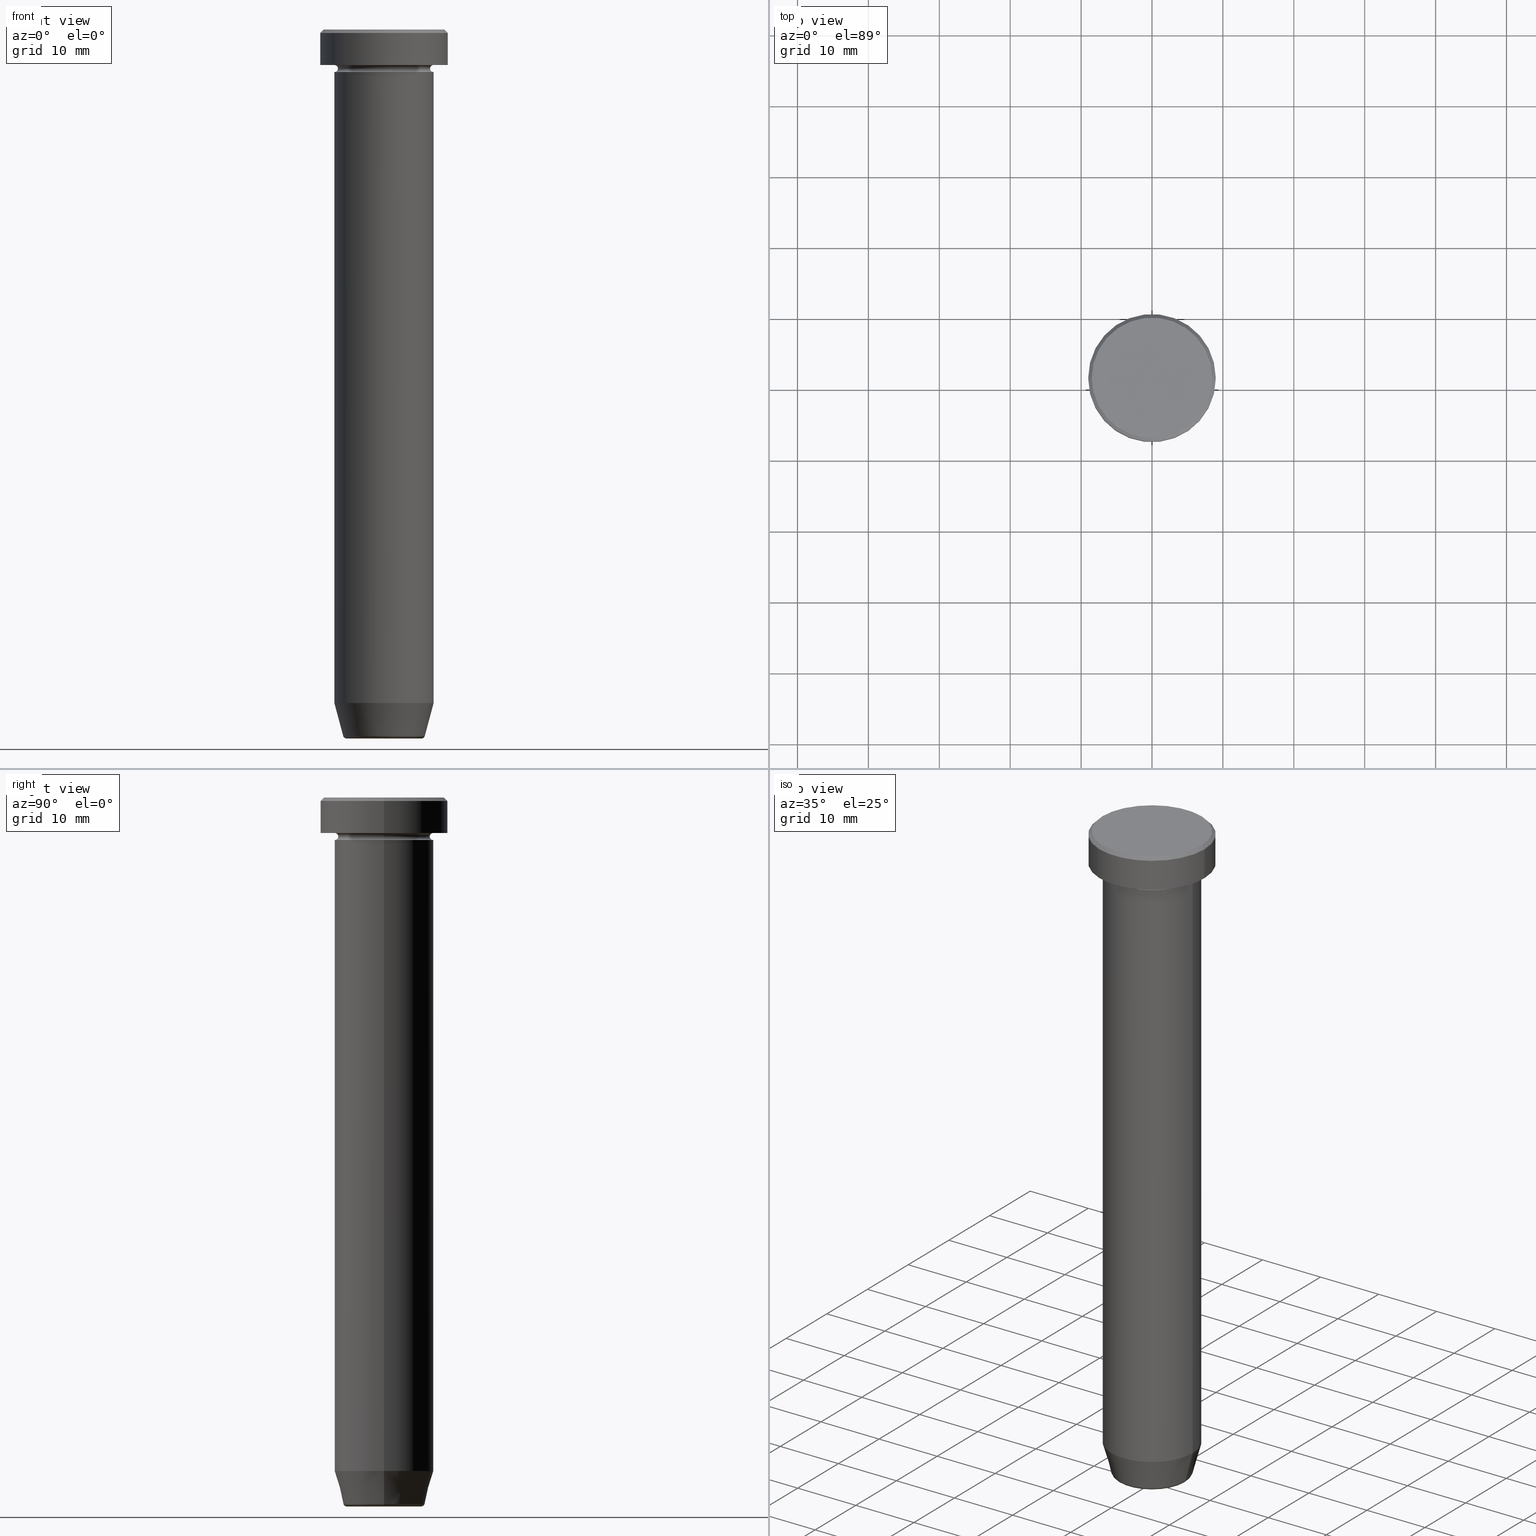
[diagram: canonical four-view strip — front | top / right | iso, engineering-drawing reading convention]
A machine part, canonical four-view strip (front | top / right | iso — engineering-drawing reading convention). The complete STEP part file that produces these views, byte-faithful:
ISO-10303-21;
HEADER;
FILE_DESCRIPTION (( 'STEP AP203' ),
    '1' );
FILE_NAME ('487d.STEP',
    '2024-01-02T23:12:55',
    ( '' ),
    ( '' ),
    'SwSTEP 2.0',
    'SolidWorks 2019',
    '' );
FILE_SCHEMA (( 'CONFIG_CONTROL_DESIGN' ));
ENDSEC;

DATA;
#1 = DIRECTION ( 'NONE',  ( -0.000000000000000000, -0.000000000000000000, 1.000000000000000000 ) ) ;
#2 = CARTESIAN_POINT ( 'NONE',  ( 0.000000000000000000, 0.000000000000000000, 0.000000000000000000 ) ) ;
#3 = DIRECTION ( 'NONE',  ( -0.000000000000000000, -0.000000000000000000, 1.000000000000000000 ) ) ;
#4 = LINE ( 'NONE', #368, #203 ) ;
#5 = EDGE_CURVE ( 'NONE', #177, #145, #255, .T. ) ;
#6 = DIRECTION ( 'NONE',  ( -0.000000000000000000, -0.000000000000000000, 1.000000000000000000 ) ) ;
#7 = CIRCLE ( 'NONE', #532, 7.000000000000000888 ) ;
#8 = DIRECTION ( 'NONE',  ( 0.000000000000000000, 0.000000000000000000, -1.000000000000000000 ) ) ;
#9 = EDGE_CURVE ( 'NONE', #237, #505, #37, .T. ) ;
#10 = DIRECTION ( 'NONE',  ( -1.224646799147353207E-16, 1.000000000000000000, 0.000000000000000000 ) ) ;
#11 = CARTESIAN_POINT ( 'NONE',  ( 0.000000000000000000, 0.000000000000000000, 0.000000000000000000 ) ) ;
#12 = APPROVAL_DATE_TIME ( #244, #369 ) ;
#13 = AXIS2_PLACEMENT_3D ( 'NONE', #59, #351, #120 ) ;
#14 = ORIENTED_EDGE ( 'NONE', *, *, #594, .F. ) ;
#15 = CIRCLE ( 'NONE', #232, 7.000000000000000000 ) ;
#16 = PLANE ( 'NONE',  #239 ) ;
#17 = CARTESIAN_POINT ( 'NONE',  ( 0.000000000000000000, 0.000000000000000000, 0.000000000000000000 ) ) ;
#18 = DIRECTION ( 'NONE',  ( -1.000000000000000000, 0.000000000000000000, 0.000000000000000000 ) ) ;
#19 = CARTESIAN_POINT ( 'NONE',  ( -6.500000000000000888, 8.266365894244635319E-16, -5.500000000000000000 ) ) ;
#20 = EDGE_CURVE ( 'NONE', #410, #566, #331, .T. ) ;
#21 = DIRECTION ( 'NONE',  ( 1.000000000000000000, 0.000000000000000000, 0.000000000000000000 ) ) ;
#22 = EDGE_LOOP ( 'NONE', ( #130, #322, #66, #143 ) ) ;
#23 = DIRECTION ( 'NONE',  ( -1.000000000000000000, 0.000000000000000000, 0.000000000000000000 ) ) ;
#24 = AXIS2_PLACEMENT_3D ( 'NONE', #464, #101, #273 ) ;
#25 = VERTEX_POINT ( 'NONE', #103 ) ;
#26 = CARTESIAN_POINT ( 'NONE',  ( 0.000000000000000000, 0.000000000000000000, -6.000000000000000000 ) ) ;
#27 = DIRECTION ( 'NONE',  ( -1.000000000000000000, 0.000000000000000000, 0.000000000000000000 ) ) ;
#28 = CARTESIAN_POINT ( 'NONE',  ( 0.000000000000000000, 0.000000000000000000, -99.50000000000000000 ) ) ;
#29 = EDGE_CURVE ( 'NONE', #280, #372, #197, .T. ) ;
#30 = ORIENTED_EDGE ( 'NONE', *, *, #420, .F. ) ;
#31 = VERTEX_POINT ( 'NONE', #186 ) ;
#32 = CARTESIAN_POINT ( 'NONE',  ( -5.276590543854903004, 6.757689212787765916E-16, -100.0000000000000000 ) ) ;
#33 = EDGE_LOOP ( 'NONE', ( #93, #36, #115, #428 ) ) ;
#34 = CIRCLE ( 'NONE', #375, 7.000000000000000000 ) ;
#35 = ORIENTED_EDGE ( 'NONE', *, *, #564, .T. ) ;
#36 = ORIENTED_EDGE ( 'NONE', *, *, #47, .T. ) ;
#37 = CIRCLE ( 'NONE', #385, 9.000000000000000000 ) ;
#38 = AXIS2_PLACEMENT_3D ( 'NONE', #290, #426, #8 ) ;
#39 = ORIENTED_EDGE ( 'NONE', *, *, #309, .F. ) ;
#40 = CC_DESIGN_DATE_AND_TIME_ASSIGNMENT ( #154, #63, ( #412 ) ) ;
#41 = DIRECTION ( 'NONE',  ( 0.000000000000000000, 0.000000000000000000, -1.000000000000000000 ) ) ;
#42 = EDGE_LOOP ( 'NONE', ( #261, #254, #227, #64 ) ) ;
#43 = FACE_OUTER_BOUND ( 'NONE', #22, .T. ) ;
#44 = AXIS2_PLACEMENT_3D ( 'NONE', #65, #396, #349 ) ;
#45 = LOCAL_TIME ( 0, 12, 55.00000000000000000, #198 ) ;
#46 = DIRECTION ( 'NONE',  ( 1.000000000000000000, 0.000000000000000000, 0.000000000000000000 ) ) ;
#47 = EDGE_CURVE ( 'NONE', #463, #505, #330, .T. ) ;
#48 = DIRECTION ( 'NONE',  ( -0.2588190451025210170, 3.169619151431768639E-17, 0.9659258262890680902 ) ) ;
#49 = DIRECTION ( 'NONE',  ( -1.000000000000000000, 0.000000000000000000, 0.000000000000000000 ) ) ;
#50 = DATE_AND_TIME ( #210, #247 ) ;
#51 = MANIFOLD_SOLID_BREP ( 'Zaoblit4', #371 ) ;
#52 = CIRCLE ( 'NONE', #151, 6.500000000000000888 ) ;
#53 = VECTOR ( 'NONE', #48, 1000.000000000000114 ) ;
#54 = EDGE_LOOP ( 'NONE', ( #498, #35 ) ) ;
#55 = ADVANCED_FACE ( 'NONE', ( #43 ), #90, .T. ) ;
#56 = LINE ( 'NONE', #398, #387 ) ;
#57 = PERSON_AND_ORGANIZATION_ROLE ( 'classification_officer' ) ;
#58 = CARTESIAN_POINT ( 'NONE',  ( -7.000000000000000888, 8.572527594031474176E-16, -5.500000000000000000 ) ) ;
#59 = CARTESIAN_POINT ( 'NONE',  ( 0.000000000000000000, 0.000000000000000000, -99.50000000000000000 ) ) ;
#60 = ORIENTED_EDGE ( 'NONE', *, *, #181, .F. ) ;
#61 = AXIS2_PLACEMENT_3D ( 'NONE', #300, #106, #108 ) ;
#62 = TOROIDAL_SURFACE ( 'NONE', #140, 7.000000000000000888, 0.5000000000000000000 ) ;
#63 = DATE_TIME_ROLE ( 'creation_date' ) ;
#64 = ORIENTED_EDGE ( 'NONE', *, *, #420, .T. ) ;
#65 = CARTESIAN_POINT ( 'NONE',  ( 0.000000000000000000, 0.000000000000000000, 0.000000000000000000 ) ) ;
#66 = ORIENTED_EDGE ( 'NONE', *, *, #496, .F. ) ;
#67 = PERSON ( 'NEUR�EN�', 'NEUR�EN�', 'NEUR�EN�', ('NEUR�EN�'), ('NEUR�EN�'), ('NEUR�EN�') ) ;
#68 = TOROIDAL_SURFACE ( 'NONE', #354, 7.000000000000000888, 0.5000000000000000000 ) ;
#69 = LOCAL_TIME ( 0, 12, 55.00000000000000000, #527 ) ;
#70 = CARTESIAN_POINT ( 'NONE',  ( 0.000000000000000000, 0.000000000000000000, -5.500000000000000000 ) ) ;
#71 = EDGE_LOOP ( 'NONE', ( #85, #220, #250, #592 ) ) ;
#72 = PERSON_AND_ORGANIZATION ( #67, #240 ) ;
#73 = DIRECTION ( 'NONE',  ( -0.000000000000000000, -0.000000000000000000, 1.000000000000000000 ) ) ;
#74 = EDGE_CURVE ( 'NONE', #410, #595, #298, .T. ) ;
#75 = ORIENTED_EDGE ( 'NONE', *, *, #181, .T. ) ;
#76 = CARTESIAN_POINT ( 'NONE',  ( 0.000000000000000000, 0.000000000000000000, -100.0000000000000000 ) ) ;
#77 = ORIENTED_EDGE ( 'NONE', *, *, #5, .F. ) ;
#78 = FACE_OUTER_BOUND ( 'NONE', #84, .T. ) ;
#79 = DIRECTION ( 'NONE',  ( -0.000000000000000000, -0.000000000000000000, 1.000000000000000000 ) ) ;
#80 = CIRCLE ( 'NONE', #44, 8.500000000000003553 ) ;
#81 = EDGE_LOOP ( 'NONE', ( #95, #252 ) ) ;
#82 = PLANE ( 'NONE',  #275 ) ;
#83 = APPLICATION_CONTEXT ( 'configuration controlled 3d designs of mechanical parts and assemblies' ) ;
#84 = EDGE_LOOP ( 'NONE', ( #455, #588, #373, #324 ) ) ;
#85 = ORIENTED_EDGE ( 'NONE', *, *, #564, .F. ) ;
#86 = FACE_OUTER_BOUND ( 'NONE', #226, .T. ) ;
#87 = DIRECTION ( 'NONE',  ( 1.000000000000000000, 0.000000000000000000, 0.000000000000000000 ) ) ;
#88 = DIRECTION ( 'NONE',  ( 0.2588190451025210170, 0.000000000000000000, 0.9659258262890680902 ) ) ;
#89 = ORIENTED_EDGE ( 'NONE', *, *, #365, .F. ) ;
#90 = CYLINDRICAL_SURFACE ( 'NONE', #454, 7.000000000000000000 ) ;
#91 = ORIENTED_EDGE ( 'NONE', *, *, #479, .T. ) ;
#92 = CARTESIAN_POINT ( 'NONE',  ( 5.759553456999434218, 0.000000000000000000, -99.62940952255127058 ) ) ;
#93 = ORIENTED_EDGE ( 'NONE', *, *, #577, .T. ) ;
#94 = CIRCLE ( 'NONE', #132, 5.759553456999434218 ) ;
#95 = ORIENTED_EDGE ( 'NONE', *, *, #496, .T. ) ;
#96 = ORIENTED_EDGE ( 'NONE', *, *, #205, .T. ) ;
#97 = TOROIDAL_SURFACE ( 'NONE', #524, 7.000000000000000888, 0.5000000000000000000 ) ;
#98 = AXIS2_PLACEMENT_3D ( 'NONE', #337, #41, #291 ) ;
#99 = ADVANCED_FACE ( 'NONE', ( #560 ), #62, .F. ) ;
#100 = CARTESIAN_POINT ( 'NONE',  ( 0.000000000000000000, 0.000000000000000000, -5.000000000000000000 ) ) ;
#101 = DIRECTION ( 'NONE',  ( -0.000000000000000000, -0.000000000000000000, 1.000000000000000000 ) ) ;
#102 = DIRECTION ( 'NONE',  ( 1.000000000000000000, 0.000000000000000000, 0.000000000000000000 ) ) ;
#103 = CARTESIAN_POINT ( 'NONE',  ( 7.000000000000000000, 0.000000000000000000, -25.00000000000000000 ) ) ;
#104 = CARTESIAN_POINT ( 'NONE',  ( 0.000000000000000000, 0.000000000000000000, -5.000000000000000000 ) ) ;
#105 = DIRECTION ( 'NONE',  ( 1.000000000000000000, 0.000000000000000000, 0.000000000000000000 ) ) ;
#106 = DIRECTION ( 'NONE',  ( 0.000000000000000000, 0.000000000000000000, -1.000000000000000000 ) ) ;
#107 = EDGE_CURVE ( 'NONE', #442, #295, #56, .T. ) ;
#108 = DIRECTION ( 'NONE',  ( 1.000000000000000000, 0.000000000000000000, 0.000000000000000000 ) ) ;
#109 = PERSON_AND_ORGANIZATION ( #67, #240 ) ;
#110 = ORIENTED_EDGE ( 'NONE', *, *, #397, .T. ) ;
#111 = AXIS2_PLACEMENT_3D ( 'NONE', #431, #10, #568 ) ;
#112 = DIRECTION ( 'NONE',  ( 1.224646799147353207E-16, 1.000000000000000000, 0.000000000000000000 ) ) ;
#113 = DIRECTION ( 'NONE',  ( -0.000000000000000000, -0.000000000000000000, 1.000000000000000000 ) ) ;
#114 = CARTESIAN_POINT ( 'NONE',  ( 0.000000000000000000, 0.000000000000000000, -5.000000000000000000 ) ) ;
#115 = ORIENTED_EDGE ( 'NONE', *, *, #188, .T. ) ;
#116 = DIRECTION ( 'NONE',  ( -0.000000000000000000, -0.000000000000000000, 1.000000000000000000 ) ) ;
#117 = PERSON_AND_ORGANIZATION_ROLE ( 'design_owner' ) ;
#118 = ADVANCED_FACE ( 'NONE', ( #360 ), #572, .F. ) ;
#119 = CIRCLE ( 'NONE', #260, 0.5000000000000004441 ) ;
#120 = DIRECTION ( 'NONE',  ( 1.000000000000000000, 0.000000000000000000, 0.000000000000000000 ) ) ;
#121 = CIRCLE ( 'NONE', #262, 9.000000000000000000 ) ;
#122 = DIRECTION ( 'NONE',  ( -0.000000000000000000, -0.000000000000000000, 1.000000000000000000 ) ) ;
#123 = DIRECTION ( 'NONE',  ( 1.000000000000000000, 0.000000000000000000, 0.000000000000000000 ) ) ;
#124 = CC_DESIGN_PERSON_AND_ORGANIZATION_ASSIGNMENT ( #109, #293, ( #335 ) ) ;
#125 = ORIENTED_EDGE ( 'NONE', *, *, #142, .F. ) ;
#126 = DIRECTION ( 'NONE',  ( -0.000000000000000000, -0.000000000000000000, 1.000000000000000000 ) ) ;
#127 = CARTESIAN_POINT ( 'NONE',  ( 0.000000000000000000, 0.000000000000000000, 0.000000000000000000 ) ) ;
#128 = CARTESIAN_POINT ( 'NONE',  ( 0.000000000000000000, -3.469446951953614189E-15, -25.00000000000000000 ) ) ;
#129 = ADVANCED_FACE ( 'NONE', ( #443 ), #166, .T. ) ;
#130 = ORIENTED_EDGE ( 'NONE', *, *, #309, .T. ) ;
#131 = CARTESIAN_POINT ( 'NONE',  ( 5.276590543854903004, 0.000000000000000000, -100.0000000000000000 ) ) ;
#132 = AXIS2_PLACEMENT_3D ( 'NONE', #449, #163, #23 ) ;
#133 = AXIS2_PLACEMENT_3D ( 'NONE', #301, #362, #348 ) ;
#134 = DIRECTION ( 'NONE',  ( 1.000000000000000000, 0.000000000000000000, 0.000000000000000000 ) ) ;
#135 = CONICAL_SURFACE ( 'NONE', #367, 5.660254037844383745, 0.2617993877991497409 ) ;
#136 = FACE_OUTER_BOUND ( 'NONE', #267, .T. ) ;
#137 = EDGE_LOOP ( 'NONE', ( #343, #452 ) ) ;
#138 = DIRECTION ( 'NONE',  ( 1.000000000000000000, 0.000000000000000000, 0.000000000000000000 ) ) ;
#139 = ORIENTED_EDGE ( 'NONE', *, *, #229, .T. ) ;
#140 = AXIS2_PLACEMENT_3D ( 'NONE', #207, #583, #394 ) ;
#141 = CARTESIAN_POINT ( 'NONE',  ( 0.000000000000000000, 0.000000000000000000, -5.500000000000000000 ) ) ;
#142 = EDGE_CURVE ( 'NONE', #145, #595, #7, .T. ) ;
#143 = ORIENTED_EDGE ( 'NONE', *, *, #397, .F. ) ;
#144 = CARTESIAN_POINT ( 'NONE',  ( 0.000000000000000000, 0.000000000000000000, -0.4999999999999987232 ) ) ;
#145 = VERTEX_POINT ( 'NONE', #389 ) ;
#146 = CONICAL_SURFACE ( 'NONE', #477, 8.500000000000003553, 0.7853981633974447263 ) ;
#147 = DIRECTION ( 'NONE',  ( 1.000000000000000000, 0.000000000000000000, 0.000000000000000000 ) ) ;
#148 = ADVANCED_FACE ( 'NONE', ( #304 ), #292, .T. ) ;
#149 = CARTESIAN_POINT ( 'NONE',  ( -5.660254037844383745, 6.931811989807006322E-16, -100.0000000000000000 ) ) ;
#150 = CIRCLE ( 'NONE', #223, 5.759553456999434218 ) ;
#151 = AXIS2_PLACEMENT_3D ( 'NONE', #187, #419, #102 ) ;
#152 = DIRECTION ( 'NONE',  ( -0.000000000000000000, -0.000000000000000000, 1.000000000000000000 ) ) ;
#153 = DIRECTION ( 'NONE',  ( 1.000000000000000000, 0.000000000000000000, 0.000000000000000000 ) ) ;
#154 = DATE_AND_TIME ( #350, #201 ) ;
#155 = APPROVAL_STATUS ( 'not_yet_approved' ) ;
#156 = AXIS2_PLACEMENT_3D ( 'NONE', #584, #268, #208 ) ;
#157 = FACE_OUTER_BOUND ( 'NONE', #526, .T. ) ;
#158 = APPLICATION_PROTOCOL_DEFINITION ( 'international standard', 'config_control_design', 1994, #83 ) ;
#159 = DIRECTION ( 'NONE',  ( 1.000000000000000000, 0.000000000000000000, 0.000000000000000000 ) ) ;
#160 = CARTESIAN_POINT ( 'NONE',  ( 7.000000000000000000, 0.000000000000000000, -95.00000000000000000 ) ) ;
#161 = ADVANCED_FACE ( 'NONE', ( #361 ), #556, .T. ) ;
#162 = MECHANICAL_CONTEXT ( 'NONE', #214, 'mechanical' ) ;
#163 = DIRECTION ( 'NONE',  ( -0.000000000000000000, -0.000000000000000000, 1.000000000000000000 ) ) ;
#164 = CC_DESIGN_PERSON_AND_ORGANIZATION_ASSIGNMENT ( #480, #57, ( #590 ) ) ;
#165 = COORDINATED_UNIVERSAL_TIME_OFFSET ( 1, 0, .AHEAD. ) ;
#166 = TOROIDAL_SURFACE ( 'NONE', #13, 5.276590543854903004, 0.5000000000000000000 ) ;
#167 = CC_DESIGN_APPROVAL ( #523, ( #412 ) ) ;
#168 = DIRECTION ( 'NONE',  ( 1.000000000000000000, 0.000000000000000000, 0.000000000000000000 ) ) ;
#169 = ADVANCED_FACE ( 'NONE', ( #580 ), #68, .F. ) ;
#170 = DIRECTION ( 'NONE',  ( 0.000000000000000000, 0.000000000000000000, -1.000000000000000000 ) ) ;
#171 = LINE ( 'NONE', #321, #510 ) ;
#172 = LINE ( 'NONE', #451, #381 ) ;
#173 = FACE_OUTER_BOUND ( 'NONE', #307, .T. ) ;
#174 = FACE_OUTER_BOUND ( 'NONE', #242, .T. ) ;
#175 = CIRCLE ( 'NONE', #516, 7.000000000000000000 ) ;
#176 = CIRCLE ( 'NONE', #327, 7.000000000000000000 ) ;
#177 = VERTEX_POINT ( 'NONE', #548 ) ;
#178 = ORIENTED_EDGE ( 'NONE', *, *, #414, .T. ) ;
#179 = DIRECTION ( 'NONE',  ( -0.000000000000000000, -0.000000000000000000, 1.000000000000000000 ) ) ;
#180 = ORIENTED_EDGE ( 'NONE', *, *, #213, .F. ) ;
#181 = EDGE_CURVE ( 'NONE', #578, #549, #222, .T. ) ;
#182 = CLOSED_SHELL ( 'NONE', ( #469, #99, #336, #586, #238, #439, #356, #374, #486, #425, #169, #520, #148 ) ) ;
#183 = EDGE_LOOP ( 'NONE', ( #376, #448 ) ) ;
#184 = VERTEX_POINT ( 'NONE', #92 ) ;
#185 = AXIS2_PLACEMENT_3D ( 'NONE', #2, #547, #278 ) ;
#186 = CARTESIAN_POINT ( 'NONE',  ( 9.000000000000000000, 0.000000000000000000, -5.000000000000000000 ) ) ;
#187 = CARTESIAN_POINT ( 'NONE',  ( 0.000000000000000000, 0.000000000000000000, -5.500000000000000000 ) ) ;
#188 = EDGE_CURVE ( 'NONE', #505, #237, #445, .T. ) ;
#189 = DIRECTION ( 'NONE',  ( -0.000000000000000000, -0.000000000000000000, 1.000000000000000000 ) ) ;
#190 = DIRECTION ( 'NONE',  ( 1.000000000000000000, 0.000000000000000000, 0.000000000000000000 ) ) ;
#191 = AXIS2_PLACEMENT_3D ( 'NONE', #444, #73, #317 ) ;
#192 = APPROVAL_PERSON_ORGANIZATION ( #72, #417, #243 ) ;
#193 = CARTESIAN_POINT ( 'NONE',  ( -8.500000000000003553, 0.000000000000000000, 0.000000000000000000 ) ) ;
#194 = CARTESIAN_POINT ( 'NONE',  ( 0.000000000000000000, 0.000000000000000000, -0.4999999999999987232 ) ) ;
#195 = ORIENTED_EDGE ( 'NONE', *, *, #414, .F. ) ;
#196 = PERSON_AND_ORGANIZATION ( #67, #240 ) ;
#197 = CIRCLE ( 'NONE', #61, 5.276590543854903004 ) ;
#198 = COORDINATED_UNIVERSAL_TIME_OFFSET ( 1, 0, .AHEAD. ) ;
#199 = CIRCLE ( 'NONE', #133, 0.5000000000000004441 ) ;
#200 = CALENDAR_DATE ( 2024, 3, 1 ) ;
#201 = LOCAL_TIME ( 0, 12, 55.00000000000000000, #299 ) ;
#202 = ADVANCED_BREP_SHAPE_REPRESENTATION ( '487d', ( #248, #51, #472 ), #525 ) ;
#203 = VECTOR ( 'NONE', #235, 1000.000000000000000 ) ;
#204 = PLANE ( 'NONE',  #434 ) ;
#205 = EDGE_CURVE ( 'NONE', #578, #543, #284, .T. ) ;
#206 = VERTEX_POINT ( 'NONE', #318 ) ;
#207 = CARTESIAN_POINT ( 'NONE',  ( 0.000000000000000000, 0.000000000000000000, -5.500000000000000000 ) ) ;
#208 = DIRECTION ( 'NONE',  ( 1.000000000000000000, 0.000000000000000000, 0.000000000000000000 ) ) ;
#209 = CARTESIAN_POINT ( 'NONE',  ( -5.759553456999434218, 7.812973149831952759E-16, -99.62940952255127058 ) ) ;
#210 = CALENDAR_DATE ( 2024, 3, 1 ) ;
#211 = CARTESIAN_POINT ( 'NONE',  ( 7.000000000000000888, 0.000000000000000000, -5.500000000000000000 ) ) ;
#212 = CARTESIAN_POINT ( 'NONE',  ( -7.000000000000000000, 8.572527594031473190E-16, -25.00000000000000000 ) ) ;
#213 = EDGE_CURVE ( 'NONE', #429, #184, #150, .T. ) ;
#214 = APPLICATION_CONTEXT ( 'configuration controlled 3d designs of mechanical parts and assemblies' ) ;
#215 = CIRCLE ( 'NONE', #489, 7.000000000000000888 ) ;
#216 = FACE_OUTER_BOUND ( 'NONE', #71, .T. ) ;
#217 = DIRECTION ( 'NONE',  ( -1.000000000000000000, 0.000000000000000000, -0.000000000000000000 ) ) ;
#218 = ORIENTED_EDGE ( 'NONE', *, *, #379, .T. ) ;
#219 = CARTESIAN_POINT ( 'NONE',  ( 0.000000000000000000, 0.000000000000000000, -25.00000000000000000 ) ) ;
#220 = ORIENTED_EDGE ( 'NONE', *, *, #365, .T. ) ;
#221 = DIRECTION ( 'NONE',  ( -0.000000000000000000, -0.000000000000000000, 1.000000000000000000 ) ) ;
#222 = LINE ( 'NONE', #591, #597 ) ;
#223 = AXIS2_PLACEMENT_3D ( 'NONE', #492, #264, #27 ) ;
#224 = CIRCLE ( 'NONE', #303, 8.500000000000003553 ) ;
#225 = EDGE_CURVE ( 'NONE', #543, #566, #408, .T. ) ;
#226 = EDGE_LOOP ( 'NONE', ( #178, #228, #39, #358 ) ) ;
#227 = ORIENTED_EDGE ( 'NONE', *, *, #446, .T. ) ;
#228 = ORIENTED_EDGE ( 'NONE', *, *, #558, .T. ) ;
#229 = EDGE_CURVE ( 'NONE', #184, #413, #171, .T. ) ;
#230 = FACE_OUTER_BOUND ( 'NONE', #504, .T. ) ;
#231 = CIRCLE ( 'NONE', #156, 7.000000000000000000 ) ;
#232 = AXIS2_PLACEMENT_3D ( 'NONE', #219, #189, #147 ) ;
#233 = DIRECTION ( 'NONE',  ( -1.000000000000000000, 0.000000000000000000, 0.000000000000000000 ) ) ;
#234 = DIRECTION ( 'NONE',  ( -0.000000000000000000, -0.000000000000000000, 1.000000000000000000 ) ) ;
#235 = DIRECTION ( 'NONE',  ( -0.000000000000000000, -0.000000000000000000, 1.000000000000000000 ) ) ;
#236 = PLANE ( 'NONE',  #98 ) ;
#237 = VERTEX_POINT ( 'NONE', #256 ) ;
#238 = ADVANCED_FACE ( 'NONE', ( #359 ), #537, .T. ) ;
#239 = AXIS2_PLACEMENT_3D ( 'NONE', #499, #529, #538 ) ;
#240 = ORGANIZATION ( 'NEUR�EN�', 'NEUR�EN�', '' ) ;
#241 = PERSON_AND_ORGANIZATION ( #67, #240 ) ;
#242 = EDGE_LOOP ( 'NONE', ( #77, #91, #581, #125 ) ) ;
#243 = APPROVAL_ROLE ( '' ) ;
#244 = DATE_AND_TIME ( #297, #69 ) ;
#245 = ADVANCED_FACE ( 'NONE', ( #340 ), #294, .T. ) ;
#246 = COORDINATED_UNIVERSAL_TIME_OFFSET ( 1, 0, .AHEAD. ) ;
#247 = LOCAL_TIME ( 0, 12, 55.00000000000000000, #246 ) ;
#248 = MANIFOLD_SOLID_BREP ( 'Zkosen�1', #182 ) ;
#249 = PRODUCT_RELATED_PRODUCT_CATEGORY ( 'detail', '', ( #493 ) ) ;
#250 = ORIENTED_EDGE ( 'NONE', *, *, #188, .F. ) ;
#251 = CARTESIAN_POINT ( 'NONE',  ( 5.276590543854903004, 0.000000000000000000, -99.50000000000000000 ) ) ;
#252 = ORIENTED_EDGE ( 'NONE', *, *, #462, .T. ) ;
#253 = FACE_OUTER_BOUND ( 'NONE', #137, .T. ) ;
#254 = ORIENTED_EDGE ( 'NONE', *, *, #479, .F. ) ;
#255 = CIRCLE ( 'NONE', #111, 0.5000000000000004441 ) ;
#256 = CARTESIAN_POINT ( 'NONE',  ( 9.000000000000000000, 0.000000000000000000, -0.4999999999999987232 ) ) ;
#257 = CARTESIAN_POINT ( 'NONE',  ( -9.000000000000000000, 1.102182119232617714E-15, -5.000000000000000000 ) ) ;
#258 = DIRECTION ( 'NONE',  ( 1.000000000000000000, 0.000000000000000000, 0.000000000000000000 ) ) ;
#259 = ORIENTED_EDGE ( 'NONE', *, *, #20, .T. ) ;
#260 = AXIS2_PLACEMENT_3D ( 'NONE', #251, #312, #536 ) ;
#261 = ORIENTED_EDGE ( 'NONE', *, *, #20, .F. ) ;
#262 = AXIS2_PLACEMENT_3D ( 'NONE', #320, #152, #378 ) ;
#263 = DIRECTION ( 'NONE',  ( 1.000000000000000000, 0.000000000000000000, 0.000000000000000000 ) ) ;
#264 = DIRECTION ( 'NONE',  ( -0.000000000000000000, -0.000000000000000000, 1.000000000000000000 ) ) ;
#265 = ORIENTED_EDGE ( 'NONE', *, *, #225, .F. ) ;
#266 = LINE ( 'NONE', #491, #401 ) ;
#267 = EDGE_LOOP ( 'NONE', ( #277, #509 ) ) ;
#268 = DIRECTION ( 'NONE',  ( -0.000000000000000000, -0.000000000000000000, 1.000000000000000000 ) ) ;
#269 = EDGE_LOOP ( 'NONE', ( #89, #416, #465, #487 ) ) ;
#270 = DIRECTION ( 'NONE',  ( -0.000000000000000000, -0.000000000000000000, 1.000000000000000000 ) ) ;
#271 = ORIENTED_EDGE ( 'NONE', *, *, #535, .T. ) ;
#272 = PRODUCT_DEFINITION_SHAPE ( 'NONE', 'NONE',  #412 ) ;
#273 = DIRECTION ( 'NONE',  ( 1.000000000000000000, 0.000000000000000000, 0.000000000000000000 ) ) ;
#274 = EDGE_LOOP ( 'NONE', ( #458, #482 ) ) ;
#275 = AXIS2_PLACEMENT_3D ( 'NONE', #128, #170, #217 ) ;
#276 = CC_DESIGN_SECURITY_CLASSIFICATION ( #590, ( #335 ) ) ;
#277 = ORIENTED_EDGE ( 'NONE', *, *, #577, .F. ) ;
#278 = DIRECTION ( 'NONE',  ( 1.000000000000000000, 0.000000000000000000, 0.000000000000000000 ) ) ;
#279 = DIRECTION ( 'NONE',  ( -0.000000000000000000, -0.000000000000000000, 1.000000000000000000 ) ) ;
#280 = VERTEX_POINT ( 'NONE', #32 ) ;
#281 = EDGE_CURVE ( 'NONE', #410, #177, #315, .T. ) ;
#282 = CARTESIAN_POINT ( 'NONE',  ( -9.000000000000000000, 1.102182119232617714E-15, 0.000000000000000000 ) ) ;
#283 = CARTESIAN_POINT ( 'NONE',  ( 0.000000000000000000, 0.000000000000000000, -100.0000000000000000 ) ) ;
#284 = CIRCLE ( 'NONE', #471, 7.000000000000000000 ) ;
#285 = APPROVAL_PERSON_ORGANIZATION ( #562, #369, #346 ) ;
#286 = CYLINDRICAL_SURFACE ( 'NONE', #460, 7.000000000000000000 ) ;
#287 = DIRECTION ( 'NONE',  ( -0.000000000000000000, -0.000000000000000000, 1.000000000000000000 ) ) ;
#288 = EDGE_CURVE ( 'NONE', #595, #145, #215, .T. ) ;
#289 = DIRECTION ( 'NONE',  ( -0.000000000000000000, -0.000000000000000000, 1.000000000000000000 ) ) ;
#290 = CARTESIAN_POINT ( 'NONE',  ( -7.000000000000000888, 0.000000000000000000, -5.500000000000000000 ) ) ;
#291 = DIRECTION ( 'NONE',  ( -1.000000000000000000, 0.000000000000000000, -0.000000000000000000 ) ) ;
#292 = CONICAL_SURFACE ( 'NONE', #500, 8.500000000000003553, 0.7853981633974447263 ) ;
#293 = PERSON_AND_ORGANIZATION_ROLE ( 'design_supplier' ) ;
#294 = CYLINDRICAL_SURFACE ( 'NONE', #185, 7.000000000000000000 ) ;
#295 = VERTEX_POINT ( 'NONE', #212 ) ;
#296 = EDGE_CURVE ( 'NONE', #501, #206, #80, .T. ) ;
#297 = CALENDAR_DATE ( 2024, 3, 1 ) ;
#298 = CIRCLE ( 'NONE', #38, 0.5000000000000004441 ) ;
#299 = COORDINATED_UNIVERSAL_TIME_OFFSET ( 1, 0, .AHEAD. ) ;
#300 = CARTESIAN_POINT ( 'NONE',  ( 0.000000000000000000, 0.000000000000000000, -100.0000000000000000 ) ) ;
#301 = CARTESIAN_POINT ( 'NONE',  ( -5.276590543854903004, 6.461959719943098517E-16, -99.50000000000000000 ) ) ;
#302 = APPROVAL_STATUS ( 'not_yet_approved' ) ;
#303 = AXIS2_PLACEMENT_3D ( 'NONE', #514, #6, #190 ) ;
#304 = FACE_OUTER_BOUND ( 'NONE', #269, .T. ) ;
#305 = ORIENTED_EDGE ( 'NONE', *, *, #225, .T. ) ;
#306 = CARTESIAN_POINT ( 'NONE',  ( 0.000000000000000000, 0.000000000000000000, 0.000000000000000000 ) ) ;
#307 = EDGE_LOOP ( 'NONE', ( #265, #271, #75, #14 ) ) ;
#308 = DIRECTION ( 'NONE',  ( 1.000000000000000000, 0.000000000000000000, 0.000000000000000000 ) ) ;
#309 = EDGE_CURVE ( 'NONE', #413, #442, #34, .T. ) ;
#310 = ORIENTED_EDGE ( 'NONE', *, *, #29, .F. ) ;
#311 = DIRECTION ( 'NONE',  ( -0.000000000000000000, -0.000000000000000000, 1.000000000000000000 ) ) ;
#312 = DIRECTION ( 'NONE',  ( 0.000000000000000000, -1.000000000000000000, 0.000000000000000000 ) ) ;
#313 = CARTESIAN_POINT ( 'NONE',  ( 0.000000000000000000, 0.000000000000000000, -25.00000000000000000 ) ) ;
#314 = UNCERTAINTY_MEASURE_WITH_UNIT (LENGTH_MEASURE( 1.000000000000000082E-05 ), #544, 'distance_accuracy_value', 'NONE');
#315 = CIRCLE ( 'NONE', #24, 6.500000000000000888 ) ;
#316 = ORIENTED_EDGE ( 'NONE', *, *, #326, .T. ) ;
#317 = DIRECTION ( 'NONE',  ( 1.000000000000000000, 0.000000000000000000, 0.000000000000000000 ) ) ;
#318 = CARTESIAN_POINT ( 'NONE',  ( 8.500000000000003553, 1.071565949253934321E-15, 0.000000000000000000 ) ) ;
#319 = EDGE_CURVE ( 'NONE', #501, #505, #172, .T. ) ;
#320 = CARTESIAN_POINT ( 'NONE',  ( 0.000000000000000000, 0.000000000000000000, -5.000000000000000000 ) ) ;
#321 = CARTESIAN_POINT ( 'NONE',  ( 5.660254037844383745, 0.000000000000000000, -100.0000000000000000 ) ) ;
#322 = ORIENTED_EDGE ( 'NONE', *, *, #107, .T. ) ;
#323 = ORIENTED_EDGE ( 'NONE', *, *, #213, .T. ) ;
#324 = ORIENTED_EDGE ( 'NONE', *, *, #9, .T. ) ;
#325 = CIRCLE ( 'NONE', #390, 0.5000000000000004441 ) ;
#326 = EDGE_CURVE ( 'NONE', #442, #413, #231, .T. ) ;
#327 = AXIS2_PLACEMENT_3D ( 'NONE', #421, #559, #153 ) ;
#328 = ORIENTED_EDGE ( 'NONE', *, *, #594, .T. ) ;
#329 = CC_DESIGN_PERSON_AND_ORGANIZATION_ASSIGNMENT ( #241, #534, ( #412 ) ) ;
#330 = LINE ( 'NONE', #282, #407 ) ;
#331 = CIRCLE ( 'NONE', #467, 0.5000000000000004441 ) ;
#332 = CARTESIAN_POINT ( 'NONE',  ( 0.000000000000000000, 0.000000000000000000, -25.00000000000000000 ) ) ;
#333 = CARTESIAN_POINT ( 'NONE',  ( 7.000000000000000000, 0.000000000000000000, -25.00000000000000000 ) ) ;
#334 = VECTOR ( 'NONE', #587, 1000.000000000000000 ) ;
#335 = PRODUCT_DEFINITION_FORMATION_WITH_SPECIFIED_SOURCE ( 'LIBOVOLN�', '', #493, .NOT_KNOWN. ) ;
#336 = ADVANCED_FACE ( 'NONE', ( #157 ), #97, .F. ) ;
#337 = CARTESIAN_POINT ( 'NONE',  ( 0.000000000000000000, 9.000000000000000000, -5.000000000000000000 ) ) ;
#338 = CARTESIAN_POINT ( 'NONE',  ( -7.000000000000000888, 0.000000000000000000, -4.999999999999999112 ) ) ;
#339 = CC_DESIGN_PERSON_AND_ORGANIZATION_ASSIGNMENT ( #573, #117, ( #493 ) ) ;
#340 = FACE_OUTER_BOUND ( 'NONE', #456, .T. ) ;
#341 = PERSON_AND_ORGANIZATION_ROLE ( 'creator' ) ;
#342 = DIRECTION ( 'NONE',  ( -1.000000000000000000, 0.000000000000000000, 0.000000000000000000 ) ) ;
#343 = ORIENTED_EDGE ( 'NONE', *, *, #205, .F. ) ;
#344 = EDGE_CURVE ( 'NONE', #372, #184, #119, .T. ) ;
#345 = APPROVAL_PERSON_ORGANIZATION ( #565, #523, #570 ) ;
#346 = APPROVAL_ROLE ( '' ) ;
#347 = SHAPE_DEFINITION_REPRESENTATION ( #272, #202 ) ;
#348 = DIRECTION ( 'NONE',  ( -1.000000000000000000, 1.224646799147351482E-16, 0.000000000000000000 ) ) ;
#349 = DIRECTION ( 'NONE',  ( 1.000000000000000000, 0.000000000000000000, 0.000000000000000000 ) ) ;
#350 = CALENDAR_DATE ( 2024, 3, 1 ) ;
#351 = DIRECTION ( 'NONE',  ( -0.000000000000000000, -0.000000000000000000, 1.000000000000000000 ) ) ;
#352 = ORIENTED_EDGE ( 'NONE', *, *, #326, .F. ) ;
#353 = DIRECTION ( 'NONE',  ( -1.000000000000000000, 0.000000000000000000, -0.000000000000000000 ) ) ;
#354 = AXIS2_PLACEMENT_3D ( 'NONE', #141, #279, #87 ) ;
#355 =( NAMED_UNIT ( * ) SI_UNIT ( $, .STERADIAN. ) SOLID_ANGLE_UNIT ( ) );
#356 = ADVANCED_FACE ( 'NONE', ( #438 ), #16, .T. ) ;
#357 = CARTESIAN_POINT ( 'NONE',  ( 0.000000000000000000, 0.000000000000000000, -25.00000000000000000 ) ) ;
#358 = ORIENTED_EDGE ( 'NONE', *, *, #229, .F. ) ;
#359 = FACE_OUTER_BOUND ( 'NONE', #33, .T. ) ;
#360 = FACE_OUTER_BOUND ( 'NONE', #183, .T. ) ;
#361 = FACE_OUTER_BOUND ( 'NONE', #370, .T. ) ;
#362 = DIRECTION ( 'NONE',  ( 1.224646799147353207E-16, 1.000000000000000000, 0.000000000000000000 ) ) ;
#363 = DIRECTION ( 'NONE',  ( 0.000000000000000000, 0.000000000000000000, -1.000000000000000000 ) ) ;
#364 = DIRECTION ( 'NONE',  ( 1.000000000000000000, 0.000000000000000000, 0.000000000000000000 ) ) ;
#365 = EDGE_CURVE ( 'NONE', #206, #237, #400, .T. ) ;
#366 = AXIS2_PLACEMENT_3D ( 'NONE', #28, #113, #138 ) ;
#367 = AXIS2_PLACEMENT_3D ( 'NONE', #283, #382, #105 ) ;
#368 = CARTESIAN_POINT ( 'NONE',  ( 9.000000000000000000, 0.000000000000000000, 0.000000000000000000 ) ) ;
#369 = APPROVAL ( #155, 'NEUR�EN�' ) ;
#370 = EDGE_LOOP ( 'NONE', ( #310, #218, #195, #512 ) ) ;
#371 = CLOSED_SHELL ( 'NONE', ( #161, #513, #55, #386, #245, #528, #118, #129 ) ) ;
#372 = VERTEX_POINT ( 'NONE', #131 ) ;
#373 = ORIENTED_EDGE ( 'NONE', *, *, #553, .T. ) ;
#374 = ADVANCED_FACE ( 'NONE', ( #78 ), #395, .T. ) ;
#375 = AXIS2_PLACEMENT_3D ( 'NONE', #585, #593, #258 ) ;
#376 = ORIENTED_EDGE ( 'NONE', *, *, #404, .T. ) ;
#377 = CARTESIAN_POINT ( 'NONE',  ( 0.000000000000000000, 0.000000000000000000, -100.0000000000000000 ) ) ;
#378 = DIRECTION ( 'NONE',  ( 1.000000000000000000, 0.000000000000000000, 0.000000000000000000 ) ) ;
#379 = EDGE_CURVE ( 'NONE', #280, #429, #199, .T. ) ;
#380 = DIRECTION ( 'NONE',  ( 1.000000000000000000, 0.000000000000000000, 0.000000000000000000 ) ) ;
#381 = VECTOR ( 'NONE', #409, 1000.000000000000114 ) ;
#382 = DIRECTION ( 'NONE',  ( -0.000000000000000000, -0.000000000000000000, 1.000000000000000000 ) ) ;
#383 = DIRECTION ( 'NONE',  ( -1.000000000000000000, 1.224646799147351482E-16, 0.000000000000000000 ) ) ;
#384 = APPLICATION_PROTOCOL_DEFINITION ( 'international standard', 'config_control_design', 1994, #214 ) ;
#385 = AXIS2_PLACEMENT_3D ( 'NONE', #194, #433, #159 ) ;
#386 = ADVANCED_FACE ( 'NONE', ( #495 ), #82, .F. ) ;
#387 = VECTOR ( 'NONE', #490, 1000.000000000000000 ) ;
#388 = DATE_AND_TIME ( #200, #45 ) ;
#389 = CARTESIAN_POINT ( 'NONE',  ( 7.000000000000000888, 8.572527594031474176E-16, -4.999999999999999112 ) ) ;
#390 = AXIS2_PLACEMENT_3D ( 'NONE', #211, #531, #574 ) ;
#391 = AXIS2_PLACEMENT_3D ( 'NONE', #306, #116, #364 ) ;
#392 = AXIS2_PLACEMENT_3D ( 'NONE', #332, #287, #380 ) ;
#393 = CARTESIAN_POINT ( 'NONE',  ( 0.000000000000000000, 7.000000000000000000, -25.00000000000000000 ) ) ;
#394 = DIRECTION ( 'NONE',  ( -1.000000000000000000, 0.000000000000000000, 0.000000000000000000 ) ) ;
#395 = CYLINDRICAL_SURFACE ( 'NONE', #191, 9.000000000000000000 ) ;
#396 = DIRECTION ( 'NONE',  ( -0.000000000000000000, -0.000000000000000000, 1.000000000000000000 ) ) ;
#397 = EDGE_CURVE ( 'NONE', #413, #25, #266, .T. ) ;
#398 = CARTESIAN_POINT ( 'NONE',  ( -7.000000000000000000, 8.572527594031473190E-16, 0.000000000000000000 ) ) ;
#399 = APPROVAL_STATUS ( 'not_yet_approved' ) ;
#400 = LINE ( 'NONE', #582, #551 ) ;
#401 = VECTOR ( 'NONE', #122, 1000.000000000000000 ) ;
#402 = CARTESIAN_POINT ( 'NONE',  ( 0.000000000000000000, 0.000000000000000000, 0.000000000000000000 ) ) ;
#403 = DIRECTION ( 'NONE',  ( 0.000000000000000000, 0.000000000000000000, -1.000000000000000000 ) ) ;
#404 = EDGE_CURVE ( 'NONE', #372, #280, #575, .T. ) ;
#405 = EDGE_LOOP ( 'NONE', ( #437, #521, #481, #180 ) ) ;
#406 = DIRECTION ( 'NONE',  ( -0.000000000000000000, -0.000000000000000000, 1.000000000000000000 ) ) ;
#407 = VECTOR ( 'NONE', #221, 1000.000000000000000 ) ;
#408 = LINE ( 'NONE', #503, #334 ) ;
#409 = DIRECTION ( 'NONE',  ( -0.7071067811865451302, 0.000000000000000000, -0.7071067811865500152 ) ) ;
#410 = VERTEX_POINT ( 'NONE', #19 ) ;
#411 = CARTESIAN_POINT ( 'NONE',  ( 0.000000000000000000, 0.000000000000000000, 0.000000000000000000 ) ) ;
#412 = PRODUCT_DEFINITION ( 'NEZN�M�', '', #335, #450 ) ;
#413 = VERTEX_POINT ( 'NONE', #160 ) ;
#414 = EDGE_CURVE ( 'NONE', #184, #429, #94, .T. ) ;
#415 = DIRECTION ( 'NONE',  ( 1.000000000000000000, 0.000000000000000000, 0.000000000000000000 ) ) ;
#416 = ORIENTED_EDGE ( 'NONE', *, *, #296, .F. ) ;
#417 = APPROVAL ( #399, 'NEUR�EN�' ) ;
#418 = CARTESIAN_POINT ( 'NONE',  ( -7.000000000000000000, 8.572527594031473190E-16, -25.00000000000000000 ) ) ;
#419 = DIRECTION ( 'NONE',  ( -0.000000000000000000, -0.000000000000000000, 1.000000000000000000 ) ) ;
#420 = EDGE_CURVE ( 'NONE', #549, #566, #423, .T. ) ;
#421 = CARTESIAN_POINT ( 'NONE',  ( 0.000000000000000000, 0.000000000000000000, -6.000000000000000000 ) ) ;
#422 = CARTESIAN_POINT ( 'NONE',  ( -9.000000000000000000, 1.102182119232617714E-15, -0.4999999999999987232 ) ) ;
#423 = CIRCLE ( 'NONE', #541, 7.000000000000000000 ) ;
#424 = CONICAL_SURFACE ( 'NONE', #557, 5.660254037844383745, 0.2617993877991497409 ) ;
#425 = ADVANCED_FACE ( 'NONE', ( #173 ), #453, .T. ) ;
#426 = DIRECTION ( 'NONE',  ( -0.000000000000000000, -1.000000000000000000, -0.000000000000000000 ) ) ;
#427 = DATE_AND_TIME ( #476, #447 ) ;
#428 = ORIENTED_EDGE ( 'NONE', *, *, #553, .F. ) ;
#429 = VERTEX_POINT ( 'NONE', #209 ) ;
#430 = APPROVAL_DATE_TIME ( #427, #417 ) ;
#431 = CARTESIAN_POINT ( 'NONE',  ( 7.000000000000000888, 8.572527594031474176E-16, -5.500000000000000000 ) ) ;
#432 = ORIENTED_EDGE ( 'NONE', *, *, #74, .F. ) ;
#433 = DIRECTION ( 'NONE',  ( 0.000000000000000000, 0.000000000000000000, -1.000000000000000000 ) ) ;
#434 = AXIS2_PLACEMENT_3D ( 'NONE', #393, #540, #353 ) ;
#435 = AXIS2_PLACEMENT_3D ( 'NONE', #100, #270, #517 ) ;
#436 = SECURITY_CLASSIFICATION_LEVEL ( 'unclassified' ) ;
#437 = ORIENTED_EDGE ( 'NONE', *, *, #379, .F. ) ;
#438 = FACE_OUTER_BOUND ( 'NONE', #54, .T. ) ;
#439 = ADVANCED_FACE ( 'NONE', ( #253 ), #204, .T. ) ;
#440 = APPROVAL_DATE_TIME ( #50, #523 ) ;
#441 = DIRECTION ( 'NONE',  ( 0.7071067811865451302, 8.659560562354904508E-17, -0.7071067811865500152 ) ) ;
#442 = VERTEX_POINT ( 'NONE', #567 ) ;
#443 = FACE_OUTER_BOUND ( 'NONE', #405, .T. ) ;
#444 = CARTESIAN_POINT ( 'NONE',  ( 0.000000000000000000, 0.000000000000000000, 0.000000000000000000 ) ) ;
#445 = CIRCLE ( 'NONE', #563, 9.000000000000000000 ) ;
#446 = EDGE_CURVE ( 'NONE', #177, #549, #325, .T. ) ;
#447 = LOCAL_TIME ( 0, 12, 55.00000000000000000, #165 ) ;
#448 = ORIENTED_EDGE ( 'NONE', *, *, #29, .T. ) ;
#449 = CARTESIAN_POINT ( 'NONE',  ( 0.000000000000000000, 0.000000000000000000, -99.62940952255127058 ) ) ;
#450 = DESIGN_CONTEXT ( 'detailed design', #83, 'design' ) ;
#451 = CARTESIAN_POINT ( 'NONE',  ( -8.500000000000003553, 0.000000000000000000, 0.000000000000000000 ) ) ;
#452 = ORIENTED_EDGE ( 'NONE', *, *, #535, .F. ) ;
#453 = CYLINDRICAL_SURFACE ( 'NONE', #391, 7.000000000000000000 ) ;
#454 = AXIS2_PLACEMENT_3D ( 'NONE', #11, #3, #518 ) ;
#455 = ORIENTED_EDGE ( 'NONE', *, *, #47, .F. ) ;
#456 = EDGE_LOOP ( 'NONE', ( #546, #316, #110, #507 ) ) ;
#457 = FACE_BOUND ( 'NONE', #274, .T. ) ;
#458 = ORIENTED_EDGE ( 'NONE', *, *, #288, .T. ) ;
#459 = AXIS2_PLACEMENT_3D ( 'NONE', #127, #311, #497 ) ;
#460 = AXIS2_PLACEMENT_3D ( 'NONE', #411, #473, #46 ) ;
#461 = ORIENTED_EDGE ( 'NONE', *, *, #281, .T. ) ;
#462 = EDGE_CURVE ( 'NONE', #295, #25, #175, .T. ) ;
#463 = VERTEX_POINT ( 'NONE', #257 ) ;
#464 = CARTESIAN_POINT ( 'NONE',  ( 0.000000000000000000, 0.000000000000000000, -5.500000000000000000 ) ) ;
#465 = ORIENTED_EDGE ( 'NONE', *, *, #319, .T. ) ;
#466 = CC_DESIGN_DATE_AND_TIME_ASSIGNMENT ( #388, #483, ( #590 ) ) ;
#467 = AXIS2_PLACEMENT_3D ( 'NONE', #58, #112, #383 ) ;
#469 = ADVANCED_FACE ( 'NONE', ( #216 ), #146, .T. ) ;
#468 = AXIS2_PLACEMENT_3D ( 'NONE', #494, #569, #21 ) ;
#470 = CARTESIAN_POINT ( 'NONE',  ( 7.000000000000000000, 0.000000000000000000, -6.000000000000000000 ) ) ;
#471 = AXIS2_PLACEMENT_3D ( 'NONE', #313, #79, #134 ) ;
#472 = AXIS2_PLACEMENT_3D ( 'NONE', #17, #522, #123 ) ;
#473 = DIRECTION ( 'NONE',  ( -0.000000000000000000, -0.000000000000000000, 1.000000000000000000 ) ) ;
#474 = CC_DESIGN_PERSON_AND_ORGANIZATION_ASSIGNMENT ( #196, #341, ( #335 ) ) ;
#475 = DIRECTION ( 'NONE',  ( 1.000000000000000000, 0.000000000000000000, 0.000000000000000000 ) ) ;
#476 = CALENDAR_DATE ( 2024, 3, 1 ) ;
#477 = AXIS2_PLACEMENT_3D ( 'NONE', #402, #579, #233 ) ;
#478 = AXIS2_PLACEMENT_3D ( 'NONE', #554, #506, #519 ) ;
#479 = EDGE_CURVE ( 'NONE', #177, #410, #52, .T. ) ;
#480 = PERSON_AND_ORGANIZATION ( #67, #240 ) ;
#481 = ORIENTED_EDGE ( 'NONE', *, *, #344, .T. ) ;
#482 = ORIENTED_EDGE ( 'NONE', *, *, #142, .T. ) ;
#483 = DATE_TIME_ROLE ( 'classification_date' ) ;
#484 = EDGE_LOOP ( 'NONE', ( #461, #545, #550, #432 ) ) ;
#485 = ORIENTED_EDGE ( 'NONE', *, *, #558, .F. ) ;
#486 = ADVANCED_FACE ( 'NONE', ( #457, #136 ), #236, .T. ) ;
#487 = ORIENTED_EDGE ( 'NONE', *, *, #9, .F. ) ;
#488 = DIRECTION ( 'NONE',  ( 1.000000000000000000, 0.000000000000000000, 0.000000000000000000 ) ) ;
#489 = AXIS2_PLACEMENT_3D ( 'NONE', #104, #289, #49 ) ;
#490 = DIRECTION ( 'NONE',  ( -0.000000000000000000, -0.000000000000000000, 1.000000000000000000 ) ) ;
#491 = CARTESIAN_POINT ( 'NONE',  ( 7.000000000000000000, 0.000000000000000000, 0.000000000000000000 ) ) ;
#492 = CARTESIAN_POINT ( 'NONE',  ( 0.000000000000000000, 0.000000000000000000, -99.62940952255127058 ) ) ;
#493 = PRODUCT ( '487d', '487d', '', ( #162 ) ) ;
#494 = CARTESIAN_POINT ( 'NONE',  ( 0.000000000000000000, 6.123233995736766085E-15, -100.0000000000000000 ) ) ;
#495 = FACE_OUTER_BOUND ( 'NONE', #81, .T. ) ;
#496 = EDGE_CURVE ( 'NONE', #25, #295, #576, .T. ) ;
#497 = DIRECTION ( 'NONE',  ( 1.000000000000000000, 0.000000000000000000, 0.000000000000000000 ) ) ;
#498 = ORIENTED_EDGE ( 'NONE', *, *, #296, .T. ) ;
#499 = CARTESIAN_POINT ( 'NONE',  ( 0.000000000000000000, 0.000000000000000000, 0.000000000000000000 ) ) ;
#500 = AXIS2_PLACEMENT_3D ( 'NONE', #539, #403, #18 ) ;
#501 = VERTEX_POINT ( 'NONE', #193 ) ;
#502 = DIRECTION ( 'NONE',  ( -0.000000000000000000, -0.000000000000000000, 1.000000000000000000 ) ) ;
#503 = CARTESIAN_POINT ( 'NONE',  ( -7.000000000000000000, 8.572527594031473190E-16, 0.000000000000000000 ) ) ;
#504 = EDGE_LOOP ( 'NONE', ( #485, #323, #139, #352 ) ) ;
#505 = VERTEX_POINT ( 'NONE', #422 ) ;
#506 = DIRECTION ( 'NONE',  ( 0.000000000000000000, 0.000000000000000000, -1.000000000000000000 ) ) ;
#507 = ORIENTED_EDGE ( 'NONE', *, *, #462, .F. ) ;
#508 = EDGE_CURVE ( 'NONE', #463, #31, #121, .T. ) ;
#509 = ORIENTED_EDGE ( 'NONE', *, *, #508, .F. ) ;
#510 = VECTOR ( 'NONE', #88, 1000.000000000000114 ) ;
#511 = EDGE_LOOP ( 'NONE', ( #96, #305, #30, #60 ) ) ;
#512 = ORIENTED_EDGE ( 'NONE', *, *, #344, .F. ) ;
#513 = ADVANCED_FACE ( 'NONE', ( #86 ), #135, .T. ) ;
#514 = CARTESIAN_POINT ( 'NONE',  ( 0.000000000000000000, 0.000000000000000000, 0.000000000000000000 ) ) ;
#515 = CARTESIAN_POINT ( 'NONE',  ( -7.000000000000000000, 8.572527594031473190E-16, -6.000000000000000000 ) ) ;
#516 = AXIS2_PLACEMENT_3D ( 'NONE', #357, #126, #308 ) ;
#517 = DIRECTION ( 'NONE',  ( 1.000000000000000000, 0.000000000000000000, 0.000000000000000000 ) ) ;
#518 = DIRECTION ( 'NONE',  ( 1.000000000000000000, 0.000000000000000000, 0.000000000000000000 ) ) ;
#519 = DIRECTION ( 'NONE',  ( -1.000000000000000000, 0.000000000000000000, 0.000000000000000000 ) ) ;
#520 = ADVANCED_FACE ( 'NONE', ( #174 ), #599, .F. ) ;
#521 = ORIENTED_EDGE ( 'NONE', *, *, #404, .F. ) ;
#522 = DIRECTION ( 'NONE',  ( 0.000000000000000000, 0.000000000000000000, 1.000000000000000000 ) ) ;
#524 = AXIS2_PLACEMENT_3D ( 'NONE', #70, #502, #488 ) ;
#523 = APPROVAL ( #302, 'NEUR�EN�' ) ;
#525 =( GEOMETRIC_REPRESENTATION_CONTEXT ( 3 ) GLOBAL_UNCERTAINTY_ASSIGNED_CONTEXT ( ( #314 ) ) GLOBAL_UNIT_ASSIGNED_CONTEXT ( ( #544, #530, #355 ) ) REPRESENTATION_CONTEXT ( 'NONE', 'WORKASPACE' ) );
#526 = EDGE_LOOP ( 'NONE', ( #561, #259, #328, #596 ) ) ;
#527 = COORDINATED_UNIVERSAL_TIME_OFFSET ( 1, 0, .AHEAD. ) ;
#528 = ADVANCED_FACE ( 'NONE', ( #230 ), #424, .T. ) ;
#529 = DIRECTION ( 'NONE',  ( 0.000000000000000000, -0.000000000000000000, 1.000000000000000000 ) ) ;
#530 =( NAMED_UNIT ( * ) PLANE_ANGLE_UNIT ( ) SI_UNIT ( $, .RADIAN. ) );
#531 = DIRECTION ( 'NONE',  ( 0.000000000000000000, -1.000000000000000000, 0.000000000000000000 ) ) ;
#532 = AXIS2_PLACEMENT_3D ( 'NONE', #114, #234, #342 ) ;
#533 = CC_DESIGN_APPROVAL ( #369, ( #590 ) ) ;
#534 = PERSON_AND_ORGANIZATION_ROLE ( 'creator' ) ;
#535 = EDGE_CURVE ( 'NONE', #543, #578, #15, .T. ) ;
#536 = DIRECTION ( 'NONE',  ( 0.000000000000000000, 0.000000000000000000, -1.000000000000000000 ) ) ;
#537 = CYLINDRICAL_SURFACE ( 'NONE', #459, 9.000000000000000000 ) ;
#538 = DIRECTION ( 'NONE',  ( 1.000000000000000000, 0.000000000000000000, 0.000000000000000000 ) ) ;
#539 = CARTESIAN_POINT ( 'NONE',  ( 0.000000000000000000, 0.000000000000000000, 0.000000000000000000 ) ) ;
#540 = DIRECTION ( 'NONE',  ( 0.000000000000000000, 0.000000000000000000, -1.000000000000000000 ) ) ;
#541 = AXIS2_PLACEMENT_3D ( 'NONE', #26, #406, #168 ) ;
#542 = CC_DESIGN_APPROVAL ( #417, ( #335 ) ) ;
#543 = VERTEX_POINT ( 'NONE', #418 ) ;
#544 =( LENGTH_UNIT ( ) NAMED_UNIT ( * ) SI_UNIT ( .MILLI., .METRE. ) );
#545 = ORIENTED_EDGE ( 'NONE', *, *, #5, .T. ) ;
#546 = ORIENTED_EDGE ( 'NONE', *, *, #107, .F. ) ;
#547 = DIRECTION ( 'NONE',  ( -0.000000000000000000, -0.000000000000000000, 1.000000000000000000 ) ) ;
#548 = CARTESIAN_POINT ( 'NONE',  ( 6.500000000000000888, 0.000000000000000000, -5.500000000000000000 ) ) ;
#549 = VERTEX_POINT ( 'NONE', #470 ) ;
#550 = ORIENTED_EDGE ( 'NONE', *, *, #288, .F. ) ;
#551 = VECTOR ( 'NONE', #441, 1000.000000000000114 ) ;
#552 = CIRCLE ( 'NONE', #435, 9.000000000000000000 ) ;
#553 = EDGE_CURVE ( 'NONE', #31, #237, #4, .T. ) ;
#554 = CARTESIAN_POINT ( 'NONE',  ( 0.000000000000000000, 0.000000000000000000, -5.500000000000000000 ) ) ;
#555 = LINE ( 'NONE', #149, #53 ) ;
#556 = TOROIDAL_SURFACE ( 'NONE', #366, 5.276590543854903004, 0.5000000000000000000 ) ;
#557 = AXIS2_PLACEMENT_3D ( 'NONE', #377, #1, #475 ) ;
#558 = EDGE_CURVE ( 'NONE', #429, #442, #555, .T. ) ;
#559 = DIRECTION ( 'NONE',  ( -0.000000000000000000, -0.000000000000000000, 1.000000000000000000 ) ) ;
#560 = FACE_OUTER_BOUND ( 'NONE', #484, .T. ) ;
#561 = ORIENTED_EDGE ( 'NONE', *, *, #281, .F. ) ;
#562 = PERSON_AND_ORGANIZATION ( #67, #240 ) ;
#563 = AXIS2_PLACEMENT_3D ( 'NONE', #144, #363, #415 ) ;
#564 = EDGE_CURVE ( 'NONE', #206, #501, #224, .T. ) ;
#565 = PERSON_AND_ORGANIZATION ( #67, #240 ) ;
#566 = VERTEX_POINT ( 'NONE', #515 ) ;
#567 = CARTESIAN_POINT ( 'NONE',  ( -7.000000000000000000, 8.572527594031473190E-16, -95.00000000000000000 ) ) ;
#568 = DIRECTION ( 'NONE',  ( -1.000000000000000000, -1.224646799147351482E-16, 0.000000000000000000 ) ) ;
#569 = DIRECTION ( 'NONE',  ( 0.000000000000000000, -0.000000000000000000, 1.000000000000000000 ) ) ;
#570 = APPROVAL_ROLE ( '' ) ;
#571 = DIRECTION ( 'NONE',  ( 0.000000000000000000, 0.000000000000000000, -1.000000000000000000 ) ) ;
#572 = PLANE ( 'NONE',  #468 ) ;
#573 = PERSON_AND_ORGANIZATION ( #67, #240 ) ;
#574 = DIRECTION ( 'NONE',  ( 0.000000000000000000, 0.000000000000000000, -1.000000000000000000 ) ) ;
#575 = CIRCLE ( 'NONE', #589, 5.276590543854903004 ) ;
#576 = CIRCLE ( 'NONE', #392, 7.000000000000000000 ) ;
#577 = EDGE_CURVE ( 'NONE', #31, #463, #552, .T. ) ;
#578 = VERTEX_POINT ( 'NONE', #333 ) ;
#579 = DIRECTION ( 'NONE',  ( 0.000000000000000000, 0.000000000000000000, -1.000000000000000000 ) ) ;
#580 = FACE_OUTER_BOUND ( 'NONE', #42, .T. ) ;
#581 = ORIENTED_EDGE ( 'NONE', *, *, #74, .T. ) ;
#582 = CARTESIAN_POINT ( 'NONE',  ( 8.500000000000003553, 1.040949779275250731E-15, 0.000000000000000000 ) ) ;
#583 = DIRECTION ( 'NONE',  ( 0.000000000000000000, 0.000000000000000000, -1.000000000000000000 ) ) ;
#584 = CARTESIAN_POINT ( 'NONE',  ( 0.000000000000000000, 0.000000000000000000, -95.00000000000000000 ) ) ;
#585 = CARTESIAN_POINT ( 'NONE',  ( 0.000000000000000000, 0.000000000000000000, -95.00000000000000000 ) ) ;
#586 = ADVANCED_FACE ( 'NONE', ( #598 ), #286, .T. ) ;
#587 = DIRECTION ( 'NONE',  ( -0.000000000000000000, -0.000000000000000000, 1.000000000000000000 ) ) ;
#588 = ORIENTED_EDGE ( 'NONE', *, *, #508, .T. ) ;
#589 = AXIS2_PLACEMENT_3D ( 'NONE', #76, #571, #263 ) ;
#590 = SECURITY_CLASSIFICATION ( '', '', #436 ) ;
#591 = CARTESIAN_POINT ( 'NONE',  ( 7.000000000000000000, 0.000000000000000000, 0.000000000000000000 ) ) ;
#592 = ORIENTED_EDGE ( 'NONE', *, *, #319, .F. ) ;
#593 = DIRECTION ( 'NONE',  ( -0.000000000000000000, -0.000000000000000000, 1.000000000000000000 ) ) ;
#594 = EDGE_CURVE ( 'NONE', #566, #549, #176, .T. ) ;
#595 = VERTEX_POINT ( 'NONE', #338 ) ;
#596 = ORIENTED_EDGE ( 'NONE', *, *, #446, .F. ) ;
#597 = VECTOR ( 'NONE', #179, 1000.000000000000000 ) ;
#598 = FACE_OUTER_BOUND ( 'NONE', #511, .T. ) ;
#599 = TOROIDAL_SURFACE ( 'NONE', #478, 7.000000000000000888, 0.5000000000000000000 ) ;
ENDSEC;
END-ISO-10303-21;
